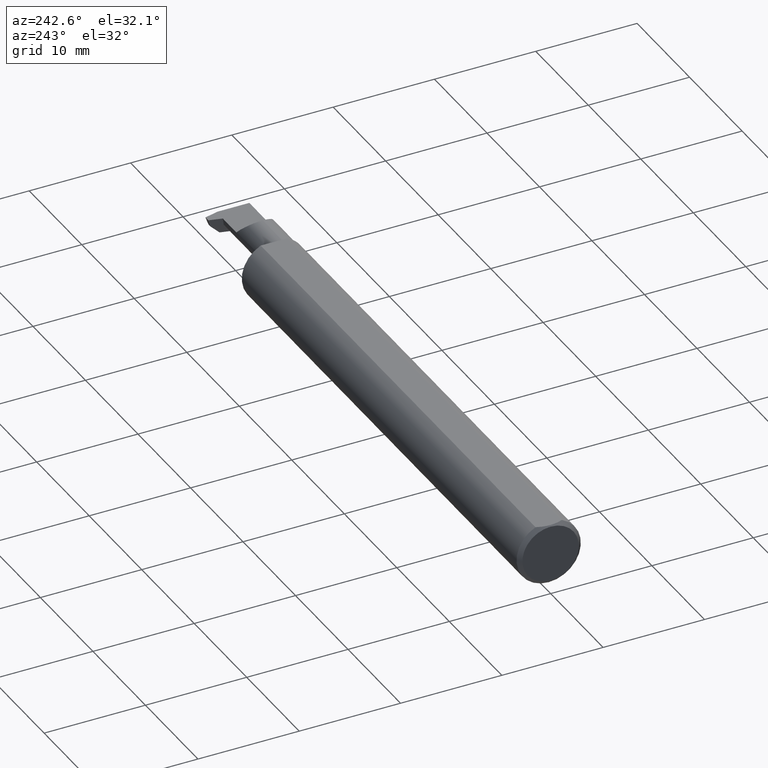
[diagram: clean part render]
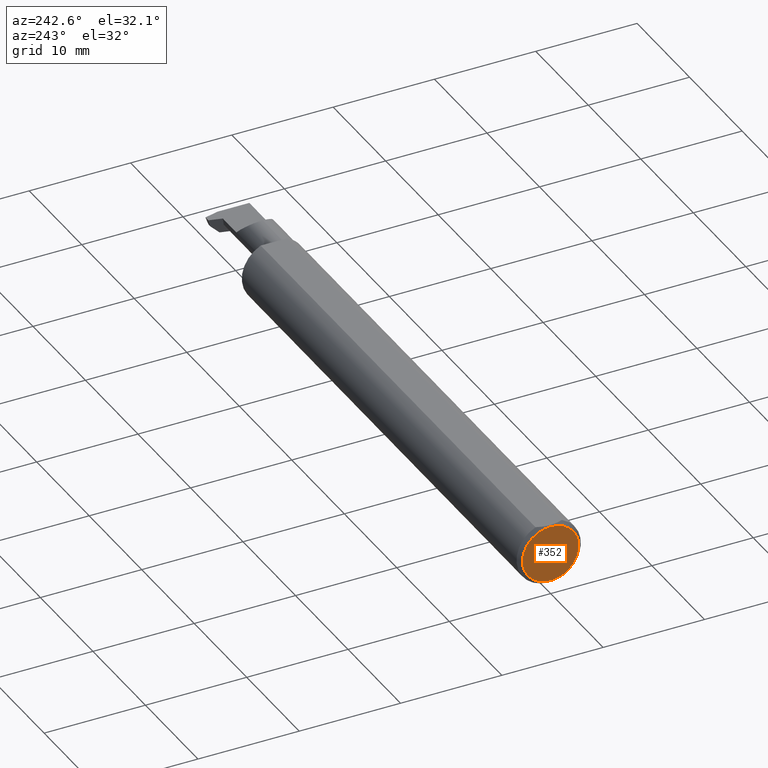
[diagram: same view with one face highlighted and labeled with its STEP entity id]
A machine part, auxiliary view. The second image highlights one B-rep face of the part: STEP entity #352.
In plain terms, the highlighted planar face has unit normal (1, 0, 0).
Its self-contained STEP definition (entity closure, byte-faithful):
#124 = PLANE ( 'NONE',  #623 ) ;
#198 = EDGE_CURVE ( 'NONE', #549, #755, #402, .T. ) ;
#284 = DIRECTION ( 'NONE',  ( 0.000000000000000000, 0.000000000000000000, -1.000000000000000000 ) ) ;
#326 = DIRECTION ( 'NONE',  ( -1.000000000000000000, -0.000000000000000000, -0.000000000000000000 ) ) ;
#352 = ADVANCED_FACE ( 'NONE', ( #426 ), #124, .F. ) ;
#379 = CIRCLE ( 'NONE', #587, 0.1098499999999999199 ) ;
#391 = CARTESIAN_POINT ( 'NONE',  ( 0.000000000000000000, 0.000000000000000000, 0.000000000000000000 ) ) ;
#402 = CIRCLE ( 'NONE', #955, 0.1098499999999999199 ) ;
#407 = ORIENTED_EDGE ( 'NONE', *, *, #198, .T. ) ;
#426 = FACE_OUTER_BOUND ( 'NONE', #544, .T. ) ;
#533 = CARTESIAN_POINT ( 'NONE',  ( 0.000000000000000000, 0.000000000000000000, -0.1098499999999999199 ) ) ;
#544 = EDGE_LOOP ( 'NONE', ( #407, #739 ) ) ;
#549 = VERTEX_POINT ( 'NONE', #533 ) ;
#557 = DIRECTION ( 'NONE',  ( 0.000000000000000000, 0.000000000000000000, -1.000000000000000000 ) ) ;
#587 = AXIS2_PLACEMENT_3D ( 'NONE', #708, #326, #557 ) ;
#623 = AXIS2_PLACEMENT_3D ( 'NONE', #805, #661, #724 ) ;
#661 = DIRECTION ( 'NONE',  ( 1.000000000000000000, 0.000000000000000000, 0.000000000000000000 ) ) ;
#693 = DIRECTION ( 'NONE',  ( -1.000000000000000000, -0.000000000000000000, -0.000000000000000000 ) ) ;
#708 = CARTESIAN_POINT ( 'NONE',  ( 0.000000000000000000, 0.000000000000000000, 0.000000000000000000 ) ) ;
#714 = CARTESIAN_POINT ( 'NONE',  ( 0.000000000000000000, 1.437123018799418518E-17, 0.1098499999999999199 ) ) ;
#718 = EDGE_CURVE ( 'NONE', #755, #549, #379, .T. ) ;
#724 = DIRECTION ( 'NONE',  ( 0.000000000000000000, 0.000000000000000000, -1.000000000000000000 ) ) ;
#739 = ORIENTED_EDGE ( 'NONE', *, *, #718, .T. ) ;
#755 = VERTEX_POINT ( 'NONE', #714 ) ;
#805 = CARTESIAN_POINT ( 'NONE',  ( 0.000000000000000000, 0.000000000000000000, 0.000000000000000000 ) ) ;
#955 = AXIS2_PLACEMENT_3D ( 'NONE', #391, #693, #284 ) ;